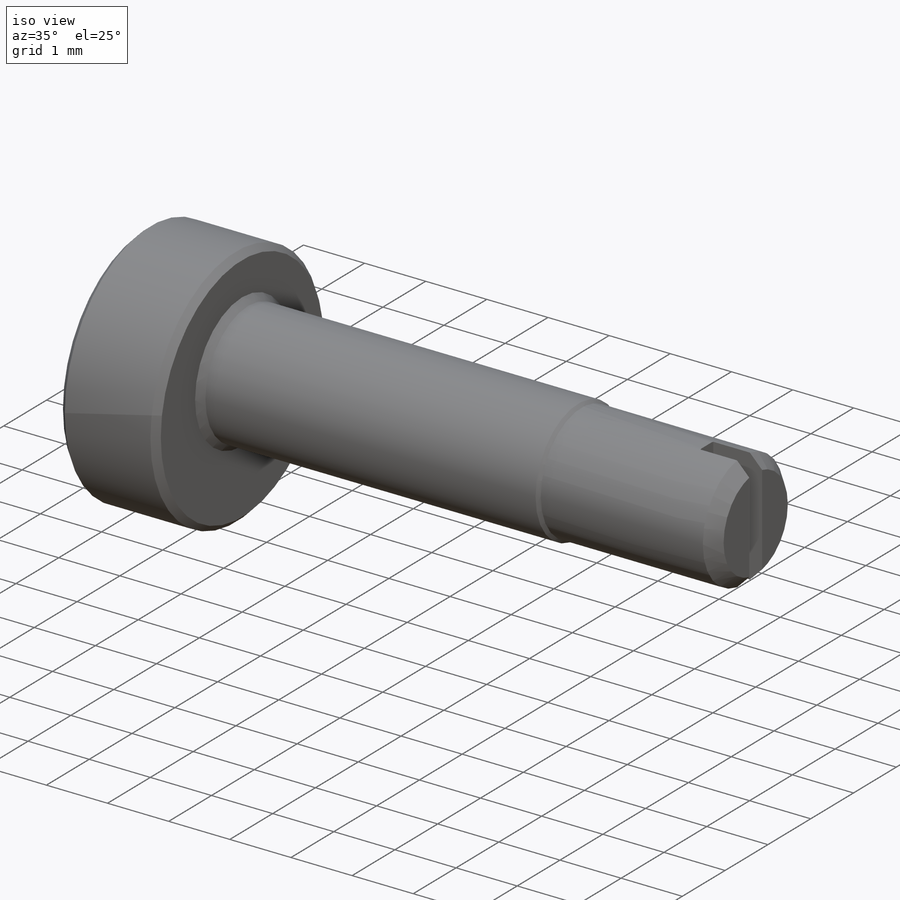
[diagram: iso view]
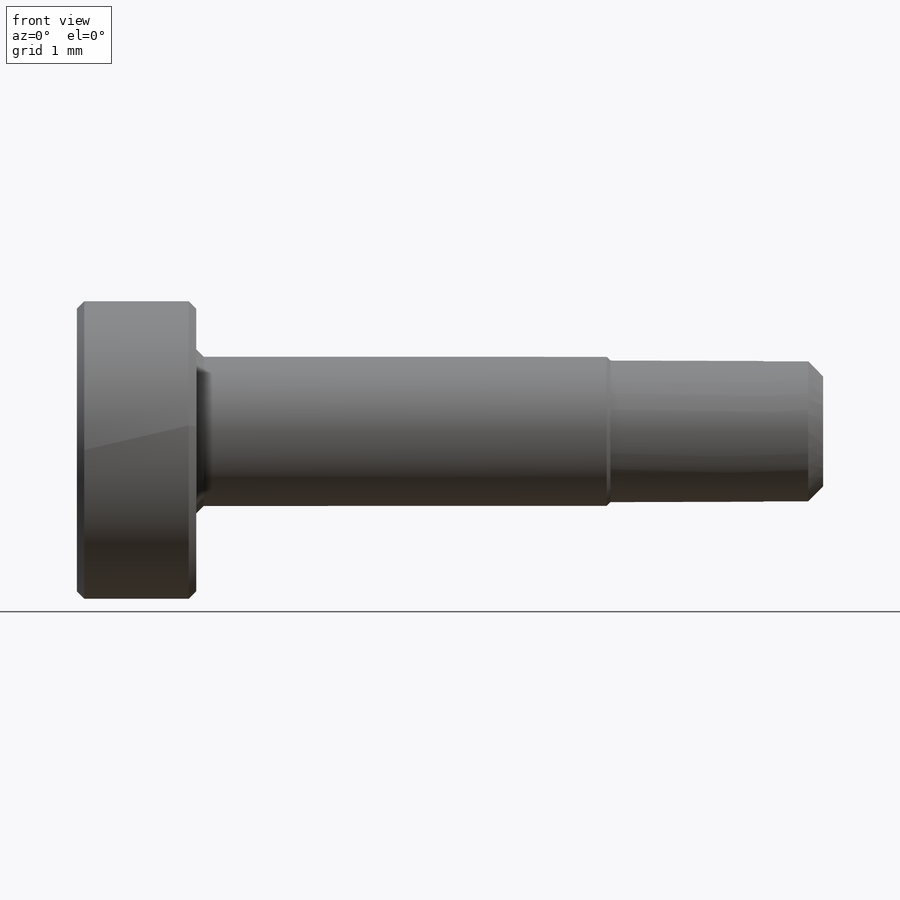
[diagram: front view]
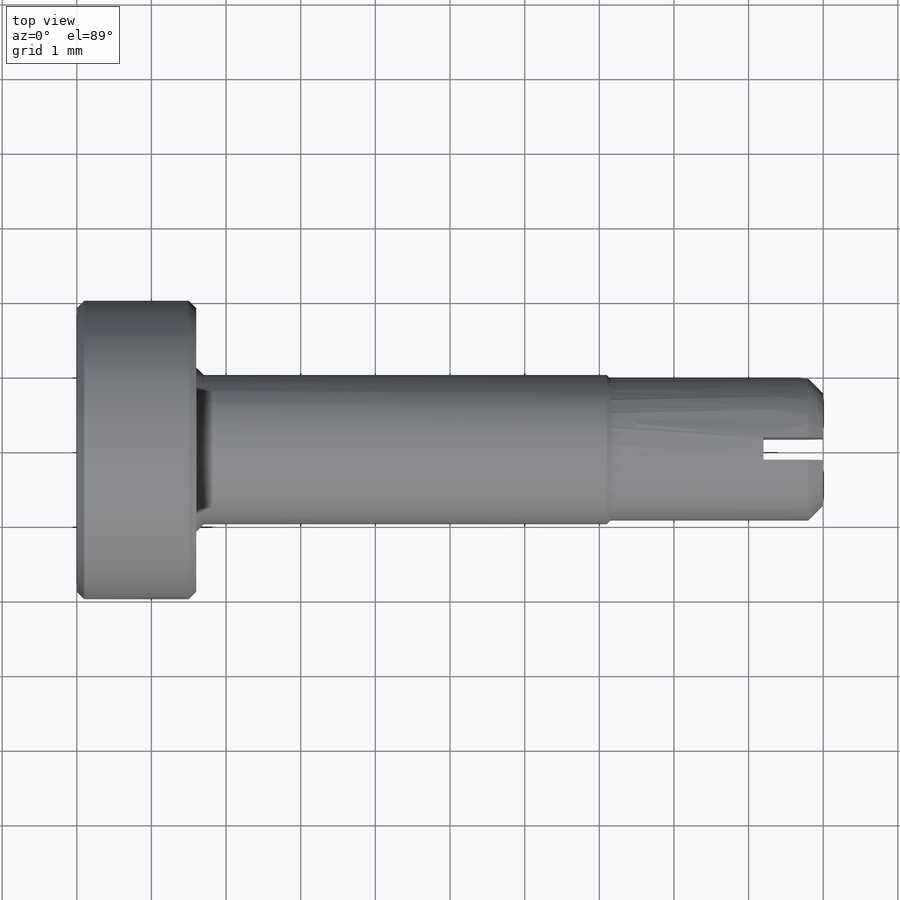
[diagram: top view]
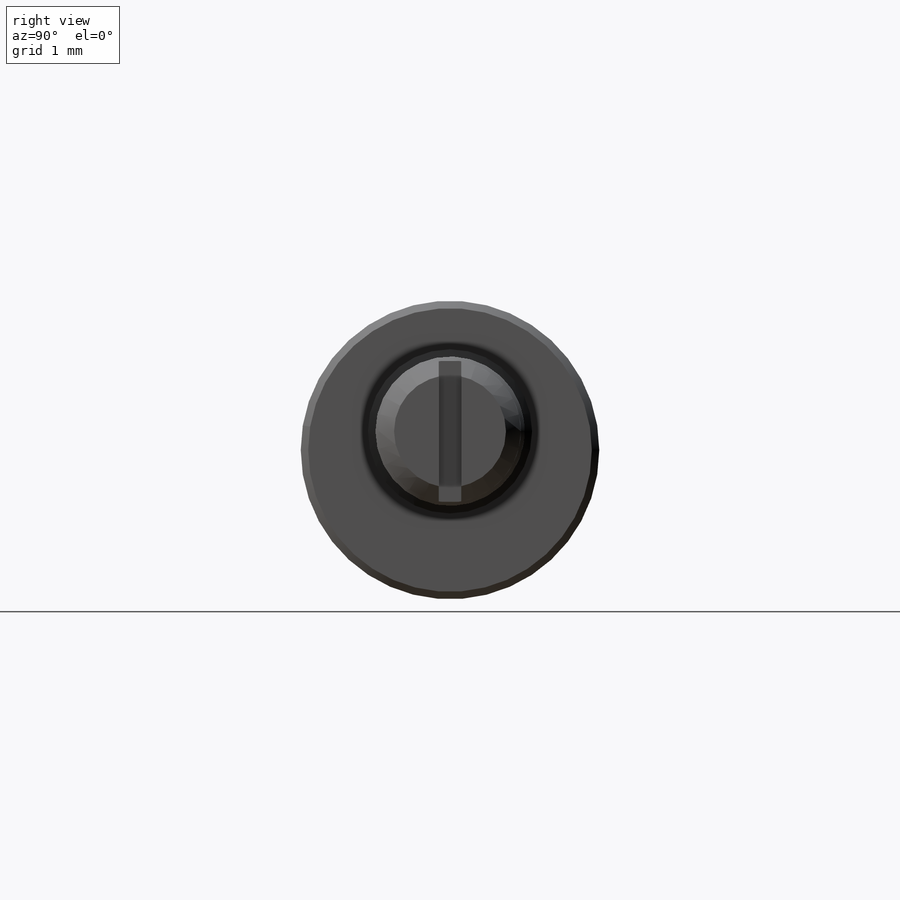
[diagram: right view]
SOLIDWORKS PART (.sldprt)
format: sldprt  version: not decoded by parser v0  size: 237,056 bytes
history: native  units: mm
features: sketch x4, plane x3, cut_extrude x3, chamfer x2, material x1, revolve x1, thread x1 (+13 scaffold rows collapsed)
feature tree (28):
  scaffold x13  (default folders/planes/origin — collapsed)
  material  "Материал <не указан>"
  plane  "Спереди"
  plane  "Сверху"
  plane  "Справа"
  sketch  "Эскиз1"  dims[c1.D1=5.0mm c1.D2=2.0mm c1.D3=1.6mm c1.D4=10.0mm c1.D5=1.9mm c1.D6=~0.333149mm c2.D6=45.0deg c2.D7=5.5mm c2.D10=0.1mm]
  revolve  "Повернуть1"  [1 undecoded]
  thread  "Условное изображение резьбы1"  Diameter=2.5mm  [1 undecoded]
  sketch  "Эскиз2"  dims[D1=4.0mm D2=0.25mm]
  cut_extrude  "Вырез-Вытянуть5"  [1 undecoded]
  sketch  "Эскиз3"  dims[D1=0.3mm]
  cut_extrude  "Вырез-Вытянуть8"  Depth=0.8mm
  chamfer  "Фаска1"  Distance=0.2mm Angle=45deg
  chamfer  "Фаска2"  Distance=0.1mm Angle=45deg
  sketch  "Эскиз4"  dims[D1=7.65mm D2=0.25mm D3=0.4mm]
  cut_extrude  "Вырез-Вытянуть9"  Depth=0.25mm
decode coverage: 9 of 11 modeling features carry decoded parameters
note: ~ marks probable driven/reference dimensions
note: 3 parameter values undecoded
note: suppression state not decoded; provenance and decode notes live in map.json
